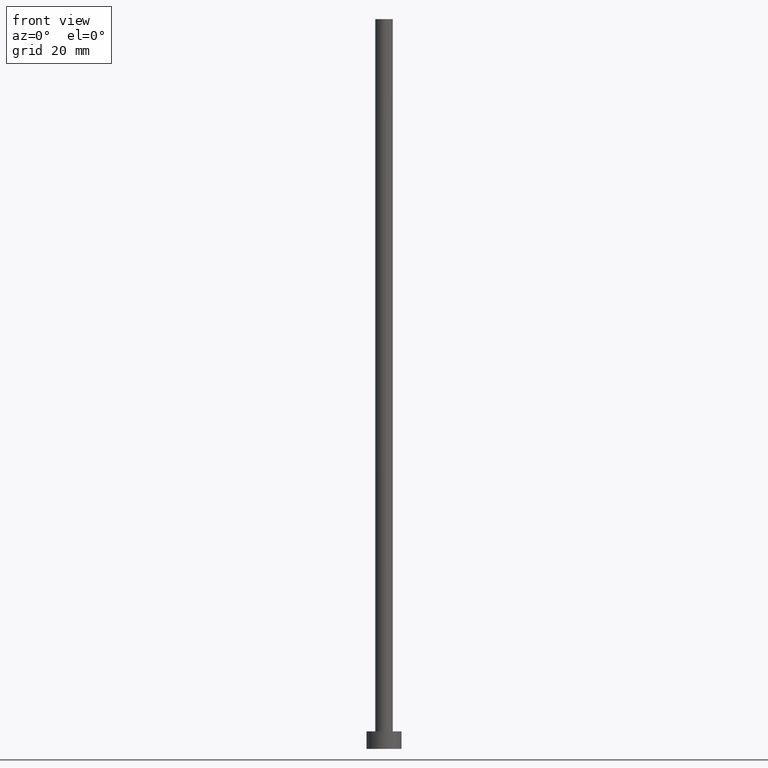
[diagram: clean part render]
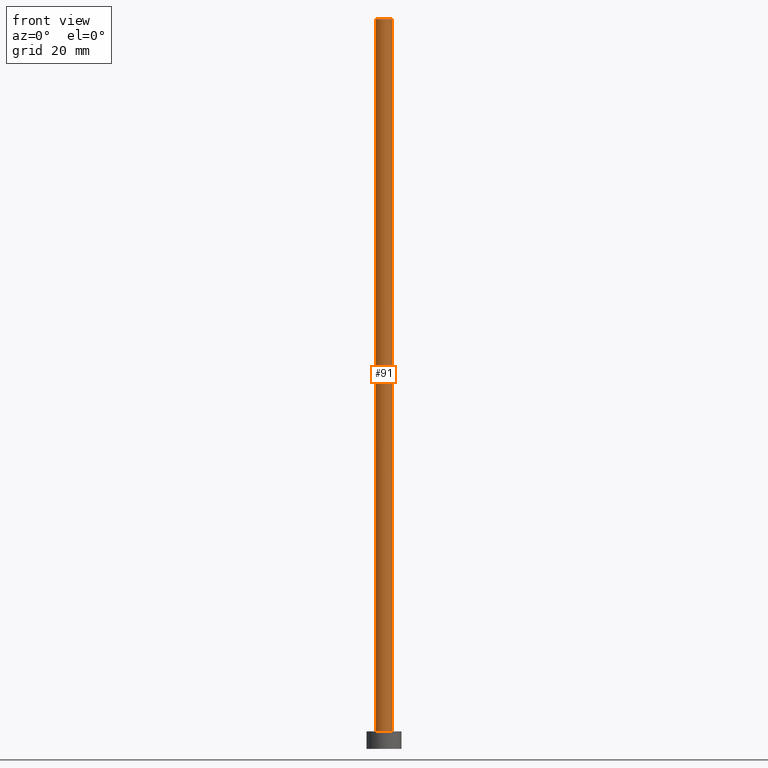
[diagram: same view with one face highlighted and labeled with its STEP entity id]
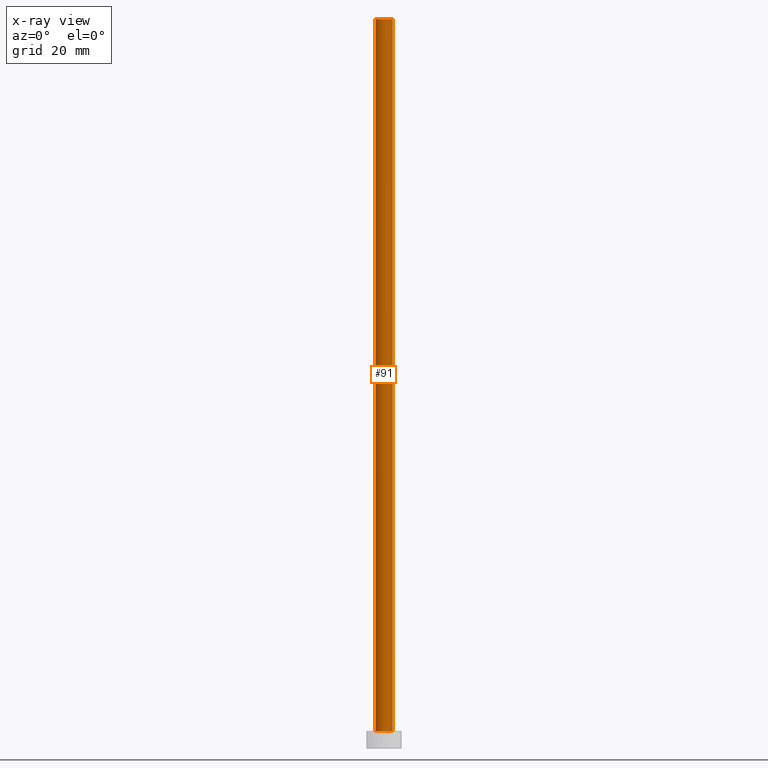
[diagram: x-ray of the same camera — body ghosted, the highlighted face saturated]
A machine part, front view. The second image highlights one B-rep face of the part: STEP entity #91.
The next image is the same camera in x-ray: the body ghosted, the highlighted face saturated — about 0% of this face is hidden behind the body in this view.
In plain terms, the highlighted cylindrical surface (edge-blend (fillet) strip) has radius 1.5 mm, axis along (-0, -0, -1).
Its self-contained STEP definition (entity closure, byte-faithful):
#10 = LINE ( 'NONE', #248, #233 ) ;
#17 = CARTESIAN_POINT ( 'NONE',  ( 1.500000000000000222, 1.836970198721029934E-16, 125.0000000000000000 ) ) ;
#29 = LINE ( 'NONE', #17, #67 ) ;
#34 = CYLINDRICAL_SURFACE ( 'NONE', #202, 1.500000000000000222 ) ;
#39 = ORIENTED_EDGE ( 'NONE', *, *, #99, .F. ) ;
#40 = DIRECTION ( 'NONE',  ( -0.000000000000000000, -0.000000000000000000, -1.000000000000000000 ) ) ;
#41 = CARTESIAN_POINT ( 'NONE',  ( -1.500000000000000222, 0.000000000000000000, 125.0000000000000000 ) ) ;
#50 = DIRECTION ( 'NONE',  ( 0.000000000000000000, 0.000000000000000000, 1.000000000000000000 ) ) ;
#56 = FACE_OUTER_BOUND ( 'NONE', #60, .T. ) ;
#60 = EDGE_LOOP ( 'NONE', ( #151, #39, #140, #242 ) ) ;
#67 = VECTOR ( 'NONE', #153, 1000.000000000000000 ) ;
#68 = EDGE_CURVE ( 'NONE', #216, #147, #212, .T. ) ;
#91 = ADVANCED_FACE ( 'NONE', ( #56 ), #34, .T. ) ;
#97 = EDGE_CURVE ( 'NONE', #110, #216, #10, .T. ) ;
#99 = EDGE_CURVE ( 'NONE', #110, #201, #125, .T. ) ;
#101 = CARTESIAN_POINT ( 'NONE',  ( 0.000000000000000000, 0.000000000000000000, 125.0000000000000000 ) ) ;
#107 = AXIS2_PLACEMENT_3D ( 'NONE', #229, #50, #130 ) ;
#110 = VERTEX_POINT ( 'NONE', #41 ) ;
#125 = CIRCLE ( 'NONE', #155, 1.500000000000000222 ) ;
#130 = DIRECTION ( 'NONE',  ( 1.000000000000000000, 0.000000000000000000, 0.000000000000000000 ) ) ;
#131 = EDGE_CURVE ( 'NONE', #201, #147, #29, .T. ) ;
#132 = DIRECTION ( 'NONE',  ( 0.000000000000000000, 0.000000000000000000, 1.000000000000000000 ) ) ;
#140 = ORIENTED_EDGE ( 'NONE', *, *, #97, .T. ) ;
#142 = CARTESIAN_POINT ( 'NONE',  ( 1.500000000000000222, 1.836970198721029934E-16, 125.0000000000000000 ) ) ;
#147 = VERTEX_POINT ( 'NONE', #171 ) ;
#151 = ORIENTED_EDGE ( 'NONE', *, *, #131, .F. ) ;
#153 = DIRECTION ( 'NONE',  ( -0.000000000000000000, -0.000000000000000000, -1.000000000000000000 ) ) ;
#155 = AXIS2_PLACEMENT_3D ( 'NONE', #177, #132, #218 ) ;
#171 = CARTESIAN_POINT ( 'NONE',  ( 1.500000000000000222, 1.836970198721029934E-16, 3.000000000000000000 ) ) ;
#177 = CARTESIAN_POINT ( 'NONE',  ( 0.000000000000000000, 0.000000000000000000, 125.0000000000000000 ) ) ;
#201 = VERTEX_POINT ( 'NONE', #142 ) ;
#202 = AXIS2_PLACEMENT_3D ( 'NONE', #101, #40, #215 ) ;
#212 = CIRCLE ( 'NONE', #107, 1.500000000000000222 ) ;
#215 = DIRECTION ( 'NONE',  ( -1.000000000000000000, 0.000000000000000000, 0.000000000000000000 ) ) ;
#216 = VERTEX_POINT ( 'NONE', #230 ) ;
#218 = DIRECTION ( 'NONE',  ( 1.000000000000000000, 0.000000000000000000, 0.000000000000000000 ) ) ;
#220 = DIRECTION ( 'NONE',  ( -0.000000000000000000, -0.000000000000000000, -1.000000000000000000 ) ) ;
#229 = CARTESIAN_POINT ( 'NONE',  ( 0.000000000000000000, 0.000000000000000000, 3.000000000000000000 ) ) ;
#230 = CARTESIAN_POINT ( 'NONE',  ( -1.500000000000000222, 0.000000000000000000, 3.000000000000000000 ) ) ;
#233 = VECTOR ( 'NONE', #220, 1000.000000000000000 ) ;
#242 = ORIENTED_EDGE ( 'NONE', *, *, #68, .T. ) ;
#248 = CARTESIAN_POINT ( 'NONE',  ( -1.500000000000000222, 0.000000000000000000, 125.0000000000000000 ) ) ;